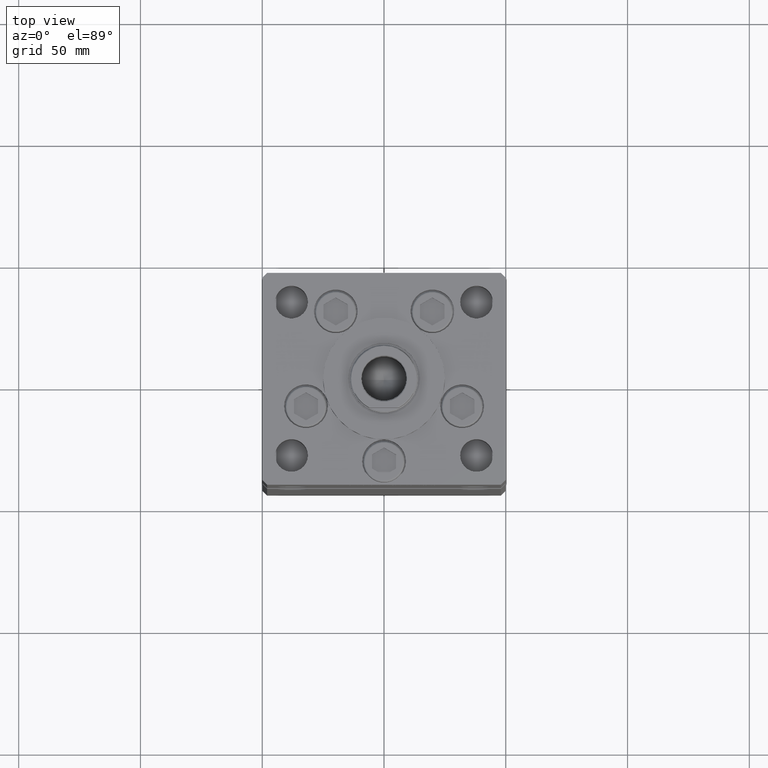
[diagram: clean part render]
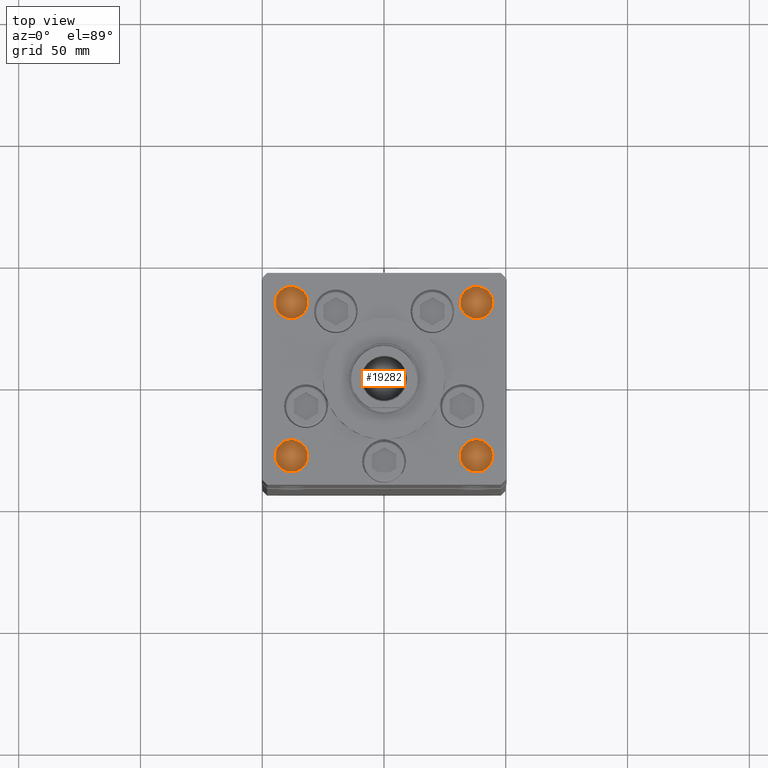
[diagram: same view with one face highlighted and labeled with its STEP entity id]
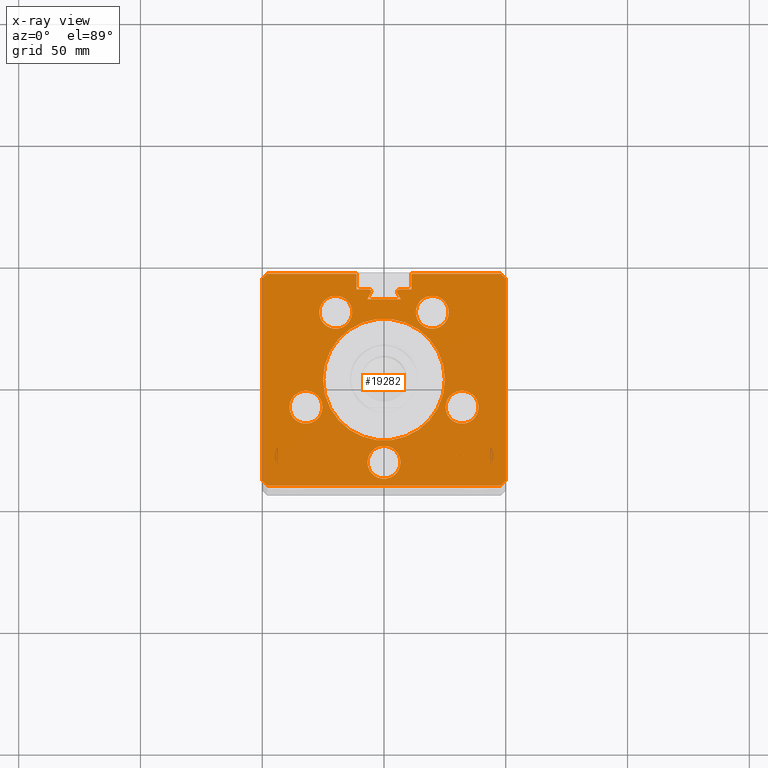
[diagram: x-ray of the same camera — body ghosted, the highlighted face saturated]
A machine part, top view. The second image highlights one B-rep face of the part: STEP entity #19282.
The next image is the same camera in x-ray: the body ghosted, the highlighted face saturated — about 0% of this face is hidden behind the body in this view.
In plain terms, the highlighted planar face has unit normal (0, 0, -1).
Its self-contained STEP definition (entity closure, byte-faithful):
#45 = CIRCLE ( 'NONE', #39577, 6.749999999999999112 ) ;
#64 = EDGE_LOOP ( 'NONE', ( #12533, #9480 ) ) ;
#89 = VECTOR ( 'NONE', #17019, 1000.000000000000114 ) ;
#130 = DIRECTION ( 'NONE',  ( 0.000000000000000000, 0.000000000000000000, 1.000000000000000000 ) ) ;
#221 = VECTOR ( 'NONE', #45832, 1000.000000000000000 ) ;
#319 = EDGE_LOOP ( 'NONE', ( #13946, #2074 ) ) ;
#484 = AXIS2_PLACEMENT_3D ( 'NONE', #11402, #23784, #40212 ) ;
#559 = CARTESIAN_POINT ( 'NONE',  ( -6.183333333333996151, 37.00000000000000000, 218.5000000000000000 ) ) ;
#793 = LINE ( 'NONE', #8056, #27007 ) ;
#1157 = CARTESIAN_POINT ( 'NONE',  ( -11.24999999999999645, 0.000000000000000000, 218.5000000000000000 ) ) ;
#1771 = DIRECTION ( 'NONE',  ( 1.000000000000000000, 0.000000000000000000, 0.000000000000000000 ) ) ;
#2074 = ORIENTED_EDGE ( 'NONE', *, *, #42100, .F. ) ;
#2286 = EDGE_CURVE ( 'NONE', #41878, #49934, #43763, .T. ) ;
#2393 = CARTESIAN_POINT ( 'NONE',  ( -25.30550741379015278, -11.33333333333334458, 218.5000000000000000 ) ) ;
#2425 = CARTESIAN_POINT ( 'NONE',  ( 25.30550741379015278, -11.33333333333334103, 218.5000000000000000 ) ) ;
#2581 = CARTESIAN_POINT ( 'NONE',  ( -6.876153656360465050, 32.99999999999986500, 218.5000000000000000 ) ) ;
#2828 = EDGE_CURVE ( 'NONE', #42453, #19532, #38580, .T. ) ;
#2914 = DIRECTION ( 'NONE',  ( 1.000000000000000000, 0.000000000000000000, 0.000000000000000000 ) ) ;
#3154 = CARTESIAN_POINT ( 'NONE',  ( -11.24999999999999645, 37.00000000000000000, 218.5000000000000000 ) ) ;
#3251 = ORIENTED_EDGE ( 'NONE', *, *, #6291, .T. ) ;
#3545 = DIRECTION ( 'NONE',  ( -3.344045254895050973E-16, -1.000000000000000000, 0.000000000000000000 ) ) ;
#3712 = CARTESIAN_POINT ( 'NONE',  ( 0.000000000000000000, 37.00000000000000000, 218.5000000000000000 ) ) ;
#3999 = CARTESIAN_POINT ( 'NONE',  ( 11.24999999999999645, 37.00000000000000000, 218.5000000000000000 ) ) ;
#4288 = VECTOR ( 'NONE', #21095, 1000.000000000000000 ) ;
#4354 = CARTESIAN_POINT ( 'NONE',  ( 11.24999999999999645, 0.000000000000000000, 218.5000000000000000 ) ) ;
#4482 = LINE ( 'NONE', #8229, #38729 ) ;
#5173 = CARTESIAN_POINT ( 'NONE',  ( 32.05550741379015278, -11.33333333333334103, 218.5000000000000000 ) ) ;
#5436 = DIRECTION ( 'NONE',  ( 1.000000000000000000, 0.000000000000000000, 0.000000000000000000 ) ) ;
#5566 = EDGE_CURVE ( 'NONE', #19532, #42453, #35273, .T. ) ;
#5608 = EDGE_CURVE ( 'NONE', #22362, #9924, #45, .T. ) ;
#5785 = CARTESIAN_POINT ( 'NONE',  ( 2.081899558550500280E-15, -34.00000000000000000, 218.5000000000000000 ) ) ;
#5811 = ORIENTED_EDGE ( 'NONE', *, *, #30408, .F. ) ;
#5882 = EDGE_CURVE ( 'NONE', #10805, #42886, #47311, .T. ) ;
#6058 = CARTESIAN_POINT ( 'NONE',  ( 0.000000000000000000, 0.000000000000000000, 218.5000000000000000 ) ) ;
#6159 = CARTESIAN_POINT ( 'NONE',  ( 49.99999999999998579, -41.49999999999999289, 218.5000000000000000 ) ) ;
#6175 = ORIENTED_EDGE ( 'NONE', *, *, #5882, .F. ) ;
#6291 = EDGE_CURVE ( 'NONE', #21057, #32233, #4482, .T. ) ;
#6517 = DIRECTION ( 'NONE',  ( -0.7071067811865474617, -0.7071067811865474617, 0.000000000000000000 ) ) ;
#7126 = DIRECTION ( 'NONE',  ( -1.000000000000000000, 0.000000000000000000, -0.000000000000000000 ) ) ;
#7132 = VERTEX_POINT ( 'NONE', #46201 ) ;
#7396 = CARTESIAN_POINT ( 'NONE',  ( 0.000000000000000000, 0.000000000000000000, 218.5000000000000000 ) ) ;
#7490 = EDGE_CURVE ( 'NONE', #31253, #7132, #34247, .T. ) ;
#7612 = VECTOR ( 'NONE', #6517, 1000.000000000000114 ) ;
#7704 = ORIENTED_EDGE ( 'NONE', *, *, #2286, .F. ) ;
#8056 = CARTESIAN_POINT ( 'NONE',  ( -11.24999999999999645, 43.50000000000000000, 218.5000000000000000 ) ) ;
#8215 = CARTESIAN_POINT ( 'NONE',  ( 6.183333333333996151, 36.06666666666599497, 218.5000000000000000 ) ) ;
#8229 = CARTESIAN_POINT ( 'NONE',  ( -50.00000000000001421, 41.49999999999999289, 218.5000000000000000 ) ) ;
#8405 = AXIS2_PLACEMENT_3D ( 'NONE', #11138, #48828, #19492 ) ;
#8602 = LINE ( 'NONE', #12369, #43869 ) ;
#8660 = VERTEX_POINT ( 'NONE', #13203 ) ;
#8667 = CARTESIAN_POINT ( 'NONE',  ( -49.99999999999998579, -41.49999999999999289, 218.5000000000000000 ) ) ;
#8671 = CIRCLE ( 'NONE', #29316, 25.00000000000000000 ) ;
#8892 = DIRECTION ( 'NONE',  ( 1.000000000000000000, 0.000000000000000000, 0.000000000000000000 ) ) ;
#8978 = LINE ( 'NONE', #37797, #27939 ) ;
#9103 = VERTEX_POINT ( 'NONE', #23593 ) ;
#9480 = ORIENTED_EDGE ( 'NONE', *, *, #47732, .F. ) ;
#9907 = VERTEX_POINT ( 'NONE', #42557 ) ;
#9924 = VERTEX_POINT ( 'NONE', #34737 ) ;
#9966 = LINE ( 'NONE', #17793, #10802 ) ;
#10317 = AXIS2_PLACEMENT_3D ( 'NONE', #25256, #50302, #45733 ) ;
#10628 = FACE_BOUND ( 'NONE', #41686, .T. ) ;
#10802 = VECTOR ( 'NONE', #25856, 1000.000000000000000 ) ;
#10805 = VERTEX_POINT ( 'NONE', #11092 ) ;
#10895 = PLANE ( 'NONE',  #53042 ) ;
#10957 = CARTESIAN_POINT ( 'NONE',  ( 32.05550741379015278, -11.33333333333334103, 218.5000000000000000 ) ) ;
#10995 = VERTEX_POINT ( 'NONE', #31558 ) ;
#11092 = CARTESIAN_POINT ( 'NONE',  ( -38.80550741379015278, -11.33333333333334458, 218.5000000000000000 ) ) ;
#11138 = CARTESIAN_POINT ( 'NONE',  ( -19.82068048781374259, 27.62499999999999645, 218.5000000000000000 ) ) ;
#11352 = DIRECTION ( 'NONE',  ( 0.4999999999999987788, -0.8660254037844392627, 0.000000000000000000 ) ) ;
#11377 = CARTESIAN_POINT ( 'NONE',  ( 19.82068048781374259, 27.62500000000000000, 218.5000000000000000 ) ) ;
#11402 = CARTESIAN_POINT ( 'NONE',  ( -6.183333333333996151, 36.06666666666599497, 218.5000000000000000 ) ) ;
#11804 = VECTOR ( 'NONE', #24157, 1000.000000000000000 ) ;
#12046 = AXIS2_PLACEMENT_3D ( 'NONE', #25314, #49300, #8892 ) ;
#12172 = EDGE_CURVE ( 'NONE', #9103, #37624, #793, .T. ) ;
#12249 = ORIENTED_EDGE ( 'NONE', *, *, #46282, .F. ) ;
#12301 = VERTEX_POINT ( 'NONE', #6159 ) ;
#12369 = CARTESIAN_POINT ( 'NONE',  ( 0.000000000000000000, 37.00000000000000000, 218.5000000000000000 ) ) ;
#12533 = ORIENTED_EDGE ( 'NONE', *, *, #20787, .F. ) ;
#12588 = EDGE_LOOP ( 'NONE', ( #52674, #6175 ) ) ;
#12696 = EDGE_CURVE ( 'NONE', #22542, #51728, #40831, .T. ) ;
#12760 = EDGE_CURVE ( 'NONE', #32100, #36792, #8978, .T. ) ;
#12761 = CARTESIAN_POINT ( 'NONE',  ( 47.99999999999998579, -43.50000000000000000, 218.5000000000000000 ) ) ;
#12829 = CIRCLE ( 'NONE', #42046, 0.9333333333339999260 ) ;
#13203 = CARTESIAN_POINT ( 'NONE',  ( 50.00000000000001421, 41.49999999999999289, 218.5000000000000000 ) ) ;
#13473 = DIRECTION ( 'NONE',  ( 1.000000000000000000, 0.000000000000000000, 0.000000000000000000 ) ) ;
#13663 = ORIENTED_EDGE ( 'NONE', *, *, #14476, .F. ) ;
#13946 = ORIENTED_EDGE ( 'NONE', *, *, #40089, .F. ) ;
#14415 = CIRCLE ( 'NONE', #8405, 6.749999999999999112 ) ;
#14476 = EDGE_CURVE ( 'NONE', #48815, #41878, #31408, .T. ) ;
#14656 = ORIENTED_EDGE ( 'NONE', *, *, #15035, .F. ) ;
#14822 = ORIENTED_EDGE ( 'NONE', *, *, #2828, .F. ) ;
#15035 = EDGE_CURVE ( 'NONE', #9907, #7132, #9966, .T. ) ;
#15045 = AXIS2_PLACEMENT_3D ( 'NONE', #16546, #130, #49648 ) ;
#15150 = CIRCLE ( 'NONE', #51241, 6.749999999999999112 ) ;
#15296 = EDGE_LOOP ( 'NONE', ( #49189, #14822 ) ) ;
#16117 = DIRECTION ( 'NONE',  ( 1.000000000000000000, 0.000000000000000000, 0.000000000000000000 ) ) ;
#16270 = ORIENTED_EDGE ( 'NONE', *, *, #7490, .T. ) ;
#16347 = VECTOR ( 'NONE', #21376, 1000.000000000000000 ) ;
#16468 = LINE ( 'NONE', #4354, #48858 ) ;
#16546 = CARTESIAN_POINT ( 'NONE',  ( 19.82068048781374259, 27.62500000000000000, 218.5000000000000000 ) ) ;
#16554 = LINE ( 'NONE', #45885, #16347 ) ;
#16738 = EDGE_CURVE ( 'NONE', #51728, #22542, #16880, .T. ) ;
#16880 = CIRCLE ( 'NONE', #46092, 6.749999999999999112 ) ;
#17019 = DIRECTION ( 'NONE',  ( 0.7071067811865474617, -0.7071067811865474617, 0.000000000000000000 ) ) ;
#17147 = AXIS2_PLACEMENT_3D ( 'NONE', #20808, #41006, #20539 ) ;
#17243 = ORIENTED_EDGE ( 'NONE', *, *, #12760, .T. ) ;
#17326 = CARTESIAN_POINT ( 'NONE',  ( 25.00000000000000000, 3.061616997868383043E-15, 218.5000000000000000 ) ) ;
#17352 = CARTESIAN_POINT ( 'NONE',  ( 6.876153656360465050, 32.99999999999986500, 218.5000000000000000 ) ) ;
#17463 = CARTESIAN_POINT ( 'NONE',  ( -5.375042956467946276, 35.59999999999899245, 218.5000000000000000 ) ) ;
#17793 = CARTESIAN_POINT ( 'NONE',  ( -11.24999999999999645, 43.50000000000000000, 218.5000000000000000 ) ) ;
#18010 = CIRCLE ( 'NONE', #17147, 6.749999999999999112 ) ;
#18471 = FACE_BOUND ( 'NONE', #12588, .T. ) ;
#19207 = DIRECTION ( 'NONE',  ( 0.000000000000000000, 0.000000000000000000, 1.000000000000000000 ) ) ;
#19282 = ADVANCED_FACE ( 'NONE', ( #18471, #35662, #39968, #27043, #10628, #39438, #43232 ), #10895, .F. ) ;
#19288 = ORIENTED_EDGE ( 'NONE', *, *, #39398, .T. ) ;
#19492 = DIRECTION ( 'NONE',  ( 1.000000000000000000, 0.000000000000000000, 0.000000000000000000 ) ) ;
#19532 = VERTEX_POINT ( 'NONE', #37795 ) ;
#19655 = VECTOR ( 'NONE', #11352, 1000.000000000000114 ) ;
#19924 = EDGE_CURVE ( 'NONE', #48815, #31253, #33020, .T. ) ;
#20332 = VECTOR ( 'NONE', #3545, 1000.000000000000000 ) ;
#20539 = DIRECTION ( 'NONE',  ( 1.000000000000000000, 0.000000000000000000, 0.000000000000000000 ) ) ;
#20787 = EDGE_CURVE ( 'NONE', #31787, #30054, #15150, .T. ) ;
#20808 = CARTESIAN_POINT ( 'NONE',  ( -32.05550741379015278, -11.33333333333334458, 218.5000000000000000 ) ) ;
#21057 = VERTEX_POINT ( 'NONE', #33840 ) ;
#21095 = DIRECTION ( 'NONE',  ( 0.7071067811865487940, -0.7071067811865463515, 0.000000000000000000 ) ) ;
#21376 = DIRECTION ( 'NONE',  ( -0.7071067811865487940, -0.7071067811865463515, 0.000000000000000000 ) ) ;
#21495 = CARTESIAN_POINT ( 'NONE',  ( 5.375042956467946276, 35.59999999999899245, 218.5000000000000000 ) ) ;
#21553 = CARTESIAN_POINT ( 'NONE',  ( -19.82068048781374259, 27.62499999999999645, 218.5000000000000000 ) ) ;
#21653 = ORIENTED_EDGE ( 'NONE', *, *, #5608, .F. ) ;
#22068 = DIRECTION ( 'NONE',  ( 0.4999999999999987788, 0.8660254037844392627, 0.000000000000000000 ) ) ;
#22362 = VERTEX_POINT ( 'NONE', #38167 ) ;
#22542 = VERTEX_POINT ( 'NONE', #44856 ) ;
#23304 = ORIENTED_EDGE ( 'NONE', *, *, #32943, .T. ) ;
#23593 = CARTESIAN_POINT ( 'NONE',  ( 11.24999999999998934, 43.50000000000000000, 218.5000000000000000 ) ) ;
#23627 = ORIENTED_EDGE ( 'NONE', *, *, #46278, .T. ) ;
#23733 = LINE ( 'NONE', #30754, #7612 ) ;
#23784 = DIRECTION ( 'NONE',  ( 0.000000000000000000, 0.000000000000000000, -1.000000000000000000 ) ) ;
#23960 = AXIS2_PLACEMENT_3D ( 'NONE', #53256, #49480, #16117 ) ;
#24087 = VERTEX_POINT ( 'NONE', #31834 ) ;
#24120 = CARTESIAN_POINT ( 'NONE',  ( -5.249999999999995559, 36.06666666666599497, 218.5000000000000000 ) ) ;
#24157 = DIRECTION ( 'NONE',  ( -1.000000000000000000, 0.000000000000000000, 0.000000000000000000 ) ) ;
#24267 = DIRECTION ( 'NONE',  ( -0.000000000000000000, -1.000000000000000000, 0.000000000000000000 ) ) ;
#24469 = EDGE_LOOP ( 'NONE', ( #31451, #40863 ) ) ;
#24536 = ORIENTED_EDGE ( 'NONE', *, *, #46352, .T. ) ;
#24702 = LINE ( 'NONE', #33043, #25715 ) ;
#25174 = DIRECTION ( 'NONE',  ( 1.000000000000000000, 0.000000000000000000, 0.000000000000000000 ) ) ;
#25256 = CARTESIAN_POINT ( 'NONE',  ( -32.05550741379015278, -11.33333333333334458, 218.5000000000000000 ) ) ;
#25314 = CARTESIAN_POINT ( 'NONE',  ( 2.081899558550500280E-15, -34.00000000000000000, 218.5000000000000000 ) ) ;
#25401 = DIRECTION ( 'NONE',  ( -1.000000000000000000, 0.000000000000000000, 0.000000000000000000 ) ) ;
#25568 = ORIENTED_EDGE ( 'NONE', *, *, #33496, .T. ) ;
#25715 = VECTOR ( 'NONE', #45972, 1000.000000000000000 ) ;
#25855 = DIRECTION ( 'NONE',  ( 0.000000000000000000, 0.000000000000000000, 1.000000000000000000 ) ) ;
#25856 = DIRECTION ( 'NONE',  ( 1.000000000000000000, 0.000000000000000000, 0.000000000000000000 ) ) ;
#26143 = EDGE_CURVE ( 'NONE', #9924, #22362, #14415, .T. ) ;
#26763 = DIRECTION ( 'NONE',  ( 0.000000000000000000, 0.000000000000000000, 1.000000000000000000 ) ) ;
#27007 = VECTOR ( 'NONE', #28526, 1000.000000000000000 ) ;
#27043 = FACE_BOUND ( 'NONE', #24469, .T. ) ;
#27189 = CARTESIAN_POINT ( 'NONE',  ( -6.749999999999997335, -34.00000000000000000, 218.5000000000000000 ) ) ;
#27507 = LINE ( 'NONE', #31028, #19655 ) ;
#27589 = CARTESIAN_POINT ( 'NONE',  ( 0.000000000000000000, 0.000000000000000000, 218.5000000000000000 ) ) ;
#27939 = VECTOR ( 'NONE', #25401, 1000.000000000000000 ) ;
#28269 = AXIS2_PLACEMENT_3D ( 'NONE', #5785, #26763, #1771 ) ;
#28357 = EDGE_LOOP ( 'NONE', ( #34646, #16270, #14656, #23304, #3251, #19288, #47557, #12249, #43525, #40786, #38826, #24536, #25568, #5811, #23627, #17243, #45148, #7704, #13663 ) ) ;
#28526 = DIRECTION ( 'NONE',  ( 1.000000000000000000, 0.000000000000000000, 0.000000000000000000 ) ) ;
#29244 = CARTESIAN_POINT ( 'NONE',  ( -25.00000000000000000, 0.000000000000000000, 218.5000000000000000 ) ) ;
#29316 = AXIS2_PLACEMENT_3D ( 'NONE', #7396, #44040, #53162 ) ;
#30054 = VERTEX_POINT ( 'NONE', #2425 ) ;
#30408 = EDGE_CURVE ( 'NONE', #35689, #10995, #12829, .T. ) ;
#30452 = DIRECTION ( 'NONE',  ( 0.000000000000000000, 0.000000000000000000, 1.000000000000000000 ) ) ;
#30688 = AXIS2_PLACEMENT_3D ( 'NONE', #6058, #37545, #33520 ) ;
#30754 = CARTESIAN_POINT ( 'NONE',  ( 49.99999999999998579, -41.49999999999999289, 218.5000000000000000 ) ) ;
#30785 = EDGE_CURVE ( 'NONE', #42886, #10805, #18010, .T. ) ;
#31028 = CARTESIAN_POINT ( 'NONE',  ( 19.44653440471351757, 11.22746187336663404, 218.5000000000000000 ) ) ;
#31253 = VERTEX_POINT ( 'NONE', #3154 ) ;
#31408 = CIRCLE ( 'NONE', #484, 0.9333333333339999260 ) ;
#31451 = ORIENTED_EDGE ( 'NONE', *, *, #16738, .F. ) ;
#31558 = CARTESIAN_POINT ( 'NONE',  ( 6.183333333333996151, 37.00000000000000000, 218.5000000000000000 ) ) ;
#31586 = LINE ( 'NONE', #8667, #89 ) ;
#31716 = AXIS2_PLACEMENT_3D ( 'NONE', #10957, #39770, #2914 ) ;
#31787 = VERTEX_POINT ( 'NONE', #38046 ) ;
#31834 = CARTESIAN_POINT ( 'NONE',  ( -47.99999999999998579, -43.50000000000000000, 218.5000000000000000 ) ) ;
#32100 = VERTEX_POINT ( 'NONE', #17352 ) ;
#32102 = EDGE_CURVE ( 'NONE', #37624, #8660, #45333, .T. ) ;
#32105 = DIRECTION ( 'NONE',  ( 1.000000000000000000, 0.000000000000000000, 0.000000000000000000 ) ) ;
#32233 = VERTEX_POINT ( 'NONE', #52824 ) ;
#32316 = CARTESIAN_POINT ( 'NONE',  ( 50.00000000000001421, 41.49999999999999289, 218.5000000000000000 ) ) ;
#32943 = EDGE_CURVE ( 'NONE', #9907, #21057, #16554, .T. ) ;
#33020 = LINE ( 'NONE', #3712, #11804 ) ;
#33043 = CARTESIAN_POINT ( 'NONE',  ( -47.99999999999998579, -43.50000000000000000, 218.5000000000000000 ) ) ;
#33237 = VECTOR ( 'NONE', #22068, 1000.000000000000114 ) ;
#33260 = DIRECTION ( 'NONE',  ( 3.344045254895050973E-16, -1.000000000000000000, 0.000000000000000000 ) ) ;
#33496 = EDGE_CURVE ( 'NONE', #48288, #10995, #8602, .T. ) ;
#33520 = DIRECTION ( 'NONE',  ( 1.000000000000000000, 0.000000000000000000, 0.000000000000000000 ) ) ;
#33761 = CARTESIAN_POINT ( 'NONE',  ( 48.00000000000000711, 43.50000000000000000, 218.5000000000000000 ) ) ;
#33840 = CARTESIAN_POINT ( 'NONE',  ( -50.00000000000001421, 41.49999999999999289, 218.5000000000000000 ) ) ;
#34191 = CARTESIAN_POINT ( 'NONE',  ( -19.44653440471351757, 11.22746187336663404, 218.5000000000000000 ) ) ;
#34247 = LINE ( 'NONE', #1157, #221 ) ;
#34646 = ORIENTED_EDGE ( 'NONE', *, *, #19924, .T. ) ;
#34737 = CARTESIAN_POINT ( 'NONE',  ( -26.57068048781373903, 27.62499999999999645, 218.5000000000000000 ) ) ;
#35273 = CIRCLE ( 'NONE', #12046, 6.749999999999999112 ) ;
#35662 = FACE_BOUND ( 'NONE', #15296, .T. ) ;
#35689 = VERTEX_POINT ( 'NONE', #21495 ) ;
#36792 = VERTEX_POINT ( 'NONE', #2581 ) ;
#37545 = DIRECTION ( 'NONE',  ( -0.000000000000000000, 0.000000000000000000, 1.000000000000000000 ) ) ;
#37624 = VERTEX_POINT ( 'NONE', #44689 ) ;
#37665 = DIRECTION ( 'NONE',  ( -1.000000000000000000, 0.000000000000000000, 0.000000000000000000 ) ) ;
#37795 = CARTESIAN_POINT ( 'NONE',  ( 6.750000000000000888, -34.00000000000000000, 218.5000000000000000 ) ) ;
#37797 = CARTESIAN_POINT ( 'NONE',  ( 0.000000000000000000, 32.99999999999986500, 218.5000000000000000 ) ) ;
#38046 = CARTESIAN_POINT ( 'NONE',  ( 38.80550741379015278, -11.33333333333334103, 218.5000000000000000 ) ) ;
#38167 = CARTESIAN_POINT ( 'NONE',  ( -13.07068048781374259, 27.62499999999999645, 218.5000000000000000 ) ) ;
#38580 = CIRCLE ( 'NONE', #28269, 6.749999999999999112 ) ;
#38729 = VECTOR ( 'NONE', #33260, 1000.000000000000000 ) ;
#38826 = ORIENTED_EDGE ( 'NONE', *, *, #12172, .F. ) ;
#39398 = EDGE_CURVE ( 'NONE', #32233, #24087, #31586, .T. ) ;
#39438 = FACE_OUTER_BOUND ( 'NONE', #28357, .T. ) ;
#39577 = AXIS2_PLACEMENT_3D ( 'NONE', #21553, #25855, #13473 ) ;
#39770 = DIRECTION ( 'NONE',  ( 0.000000000000000000, 0.000000000000000000, 1.000000000000000000 ) ) ;
#39968 = FACE_BOUND ( 'NONE', #64, .T. ) ;
#40089 = EDGE_CURVE ( 'NONE', #51266, #49748, #8671, .T. ) ;
#40212 = DIRECTION ( 'NONE',  ( 1.000000000000000000, 0.000000000000000000, 0.000000000000000000 ) ) ;
#40410 = LINE ( 'NONE', #32316, #20332 ) ;
#40786 = ORIENTED_EDGE ( 'NONE', *, *, #32102, .F. ) ;
#40831 = CIRCLE ( 'NONE', #15045, 6.749999999999999112 ) ;
#40863 = ORIENTED_EDGE ( 'NONE', *, *, #12696, .F. ) ;
#40945 = ORIENTED_EDGE ( 'NONE', *, *, #26143, .F. ) ;
#41006 = DIRECTION ( 'NONE',  ( 0.000000000000000000, 0.000000000000000000, 1.000000000000000000 ) ) ;
#41422 = EDGE_CURVE ( 'NONE', #8660, #12301, #40410, .T. ) ;
#41532 = EDGE_CURVE ( 'NONE', #36792, #49934, #47385, .T. ) ;
#41686 = EDGE_LOOP ( 'NONE', ( #21653, #40945 ) ) ;
#41878 = VERTEX_POINT ( 'NONE', #24120 ) ;
#42046 = AXIS2_PLACEMENT_3D ( 'NONE', #8215, #45105, #25174 ) ;
#42100 = EDGE_CURVE ( 'NONE', #49748, #51266, #46168, .T. ) ;
#42453 = VERTEX_POINT ( 'NONE', #27189 ) ;
#42557 = CARTESIAN_POINT ( 'NONE',  ( -48.00000000000000711, 43.50000000000000000, 218.5000000000000000 ) ) ;
#42886 = VERTEX_POINT ( 'NONE', #2393 ) ;
#43232 = FACE_BOUND ( 'NONE', #319, .T. ) ;
#43525 = ORIENTED_EDGE ( 'NONE', *, *, #41422, .F. ) ;
#43763 = CIRCLE ( 'NONE', #23960, 0.9333333333339999260 ) ;
#43869 = VECTOR ( 'NONE', #37665, 1000.000000000000000 ) ;
#43968 = CARTESIAN_POINT ( 'NONE',  ( 26.57068048781373903, 27.62500000000000000, 218.5000000000000000 ) ) ;
#44040 = DIRECTION ( 'NONE',  ( -0.000000000000000000, 0.000000000000000000, 1.000000000000000000 ) ) ;
#44172 = VERTEX_POINT ( 'NONE', #12761 ) ;
#44689 = CARTESIAN_POINT ( 'NONE',  ( 48.00000000000000711, 43.50000000000000000, 218.5000000000000000 ) ) ;
#44856 = CARTESIAN_POINT ( 'NONE',  ( 13.07068048781374081, 27.62500000000000000, 218.5000000000000000 ) ) ;
#45105 = DIRECTION ( 'NONE',  ( 0.000000000000000000, 0.000000000000000000, -1.000000000000000000 ) ) ;
#45148 = ORIENTED_EDGE ( 'NONE', *, *, #41532, .T. ) ;
#45333 = LINE ( 'NONE', #33761, #4288 ) ;
#45733 = DIRECTION ( 'NONE',  ( 1.000000000000000000, 0.000000000000000000, 0.000000000000000000 ) ) ;
#45832 = DIRECTION ( 'NONE',  ( 0.000000000000000000, 1.000000000000000000, 0.000000000000000000 ) ) ;
#45885 = CARTESIAN_POINT ( 'NONE',  ( -48.00000000000000711, 43.50000000000000000, 218.5000000000000000 ) ) ;
#45972 = DIRECTION ( 'NONE',  ( 1.000000000000000000, 0.000000000000000000, 0.000000000000000000 ) ) ;
#46092 = AXIS2_PLACEMENT_3D ( 'NONE', #11377, #19207, #32105 ) ;
#46168 = CIRCLE ( 'NONE', #30688, 25.00000000000000000 ) ;
#46201 = CARTESIAN_POINT ( 'NONE',  ( -11.24999999999999645, 43.50000000000000000, 218.5000000000000000 ) ) ;
#46278 = EDGE_CURVE ( 'NONE', #35689, #32100, #27507, .T. ) ;
#46282 = EDGE_CURVE ( 'NONE', #12301, #44172, #23733, .T. ) ;
#46352 = EDGE_CURVE ( 'NONE', #9103, #48288, #16468, .T. ) ;
#47311 = CIRCLE ( 'NONE', #10317, 6.749999999999999112 ) ;
#47385 = LINE ( 'NONE', #34191, #33237 ) ;
#47536 = DIRECTION ( 'NONE',  ( 0.000000000000000000, 0.000000000000000000, -1.000000000000000000 ) ) ;
#47557 = ORIENTED_EDGE ( 'NONE', *, *, #48242, .T. ) ;
#47732 = EDGE_CURVE ( 'NONE', #30054, #31787, #51477, .T. ) ;
#48242 = EDGE_CURVE ( 'NONE', #24087, #44172, #24702, .T. ) ;
#48288 = VERTEX_POINT ( 'NONE', #3999 ) ;
#48815 = VERTEX_POINT ( 'NONE', #559 ) ;
#48828 = DIRECTION ( 'NONE',  ( 0.000000000000000000, 0.000000000000000000, 1.000000000000000000 ) ) ;
#48858 = VECTOR ( 'NONE', #24267, 1000.000000000000000 ) ;
#49189 = ORIENTED_EDGE ( 'NONE', *, *, #5566, .F. ) ;
#49300 = DIRECTION ( 'NONE',  ( 0.000000000000000000, 0.000000000000000000, 1.000000000000000000 ) ) ;
#49480 = DIRECTION ( 'NONE',  ( 0.000000000000000000, 0.000000000000000000, -1.000000000000000000 ) ) ;
#49648 = DIRECTION ( 'NONE',  ( 1.000000000000000000, 0.000000000000000000, 0.000000000000000000 ) ) ;
#49748 = VERTEX_POINT ( 'NONE', #17326 ) ;
#49934 = VERTEX_POINT ( 'NONE', #17463 ) ;
#50302 = DIRECTION ( 'NONE',  ( 0.000000000000000000, 0.000000000000000000, 1.000000000000000000 ) ) ;
#51241 = AXIS2_PLACEMENT_3D ( 'NONE', #5173, #30452, #5436 ) ;
#51266 = VERTEX_POINT ( 'NONE', #29244 ) ;
#51477 = CIRCLE ( 'NONE', #31716, 6.749999999999999112 ) ;
#51728 = VERTEX_POINT ( 'NONE', #43968 ) ;
#52674 = ORIENTED_EDGE ( 'NONE', *, *, #30785, .F. ) ;
#52824 = CARTESIAN_POINT ( 'NONE',  ( -49.99999999999998579, -41.49999999999999289, 218.5000000000000000 ) ) ;
#53042 = AXIS2_PLACEMENT_3D ( 'NONE', #27589, #47536, #7126 ) ;
#53162 = DIRECTION ( 'NONE',  ( 1.000000000000000000, 0.000000000000000000, 0.000000000000000000 ) ) ;
#53256 = CARTESIAN_POINT ( 'NONE',  ( -6.183333333333996151, 36.06666666666599497, 218.5000000000000000 ) ) ;